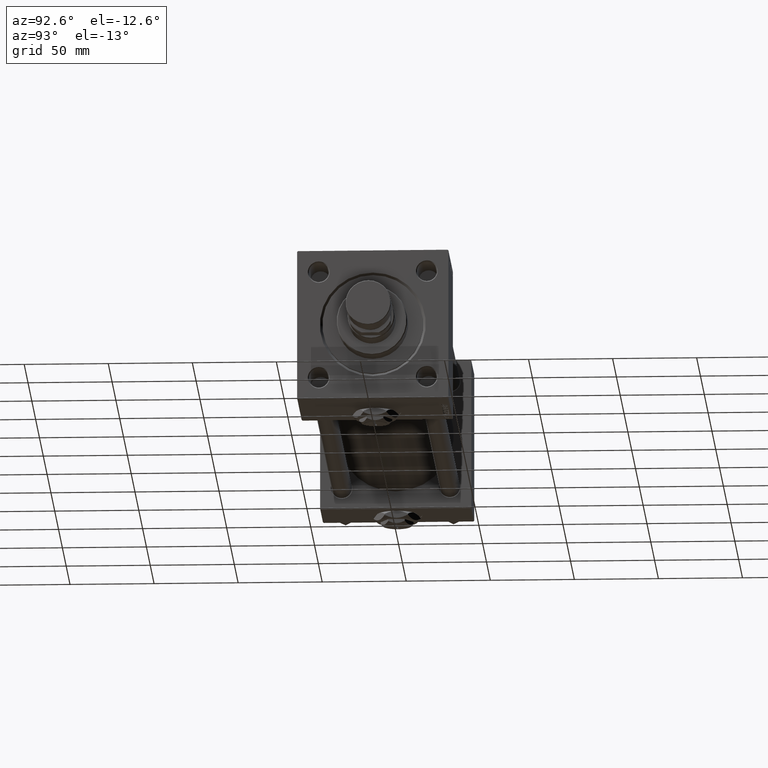
[diagram: clean part render]
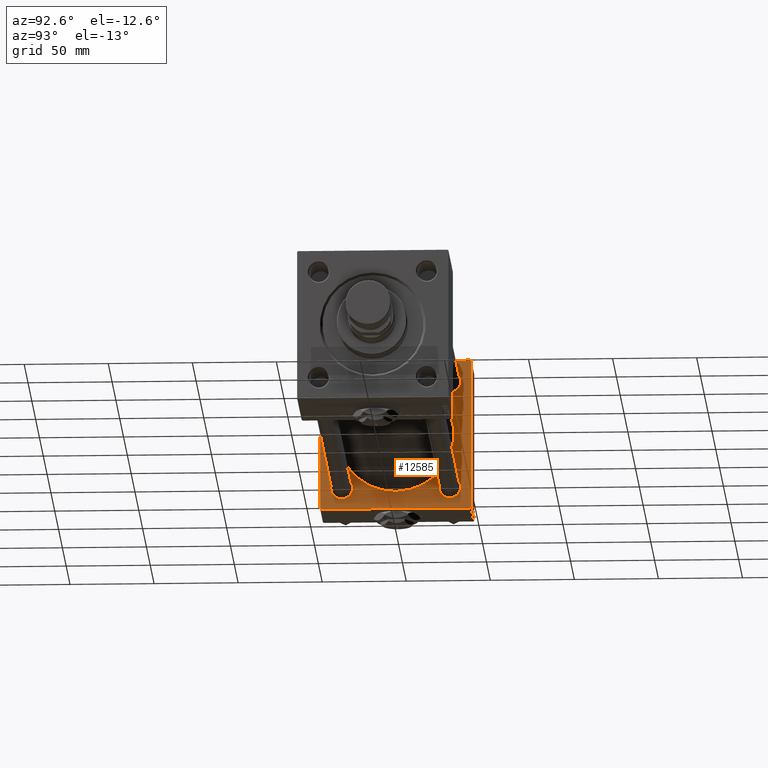
[diagram: same view with one face highlighted and labeled with its STEP entity id]
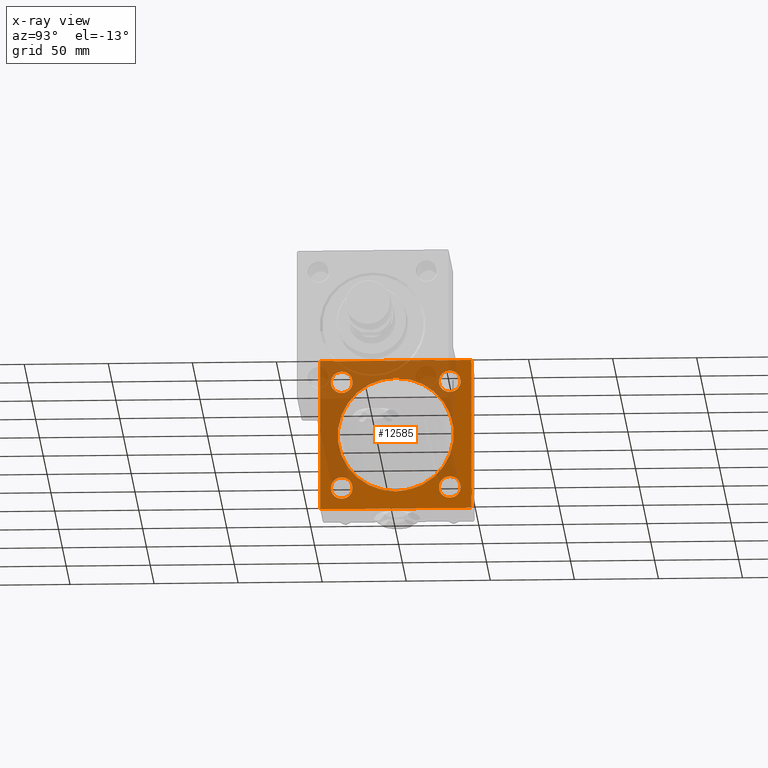
[diagram: x-ray of the same camera — body ghosted, the highlighted face saturated]
A machine part, auxiliary view. The second image highlights one B-rep face of the part: STEP entity #12585.
The next image is the same camera in x-ray: the body ghosted, the highlighted face saturated — about 49% of this face is hidden behind the body in this view.
In plain terms, the highlighted planar face has unit normal (-1, 0, 0).
Its self-contained STEP definition (entity closure, byte-faithful):
#335 = VERTEX_POINT ( 'NONE', #27713 ) ;
#470 = VERTEX_POINT ( 'NONE', #9527 ) ;
#721 = AXIS2_PLACEMENT_3D ( 'NONE', #30477, #9667, #46745 ) ;
#822 = EDGE_CURVE ( 'NONE', #7280, #34530, #19598, .T. ) ;
#852 = DIRECTION ( 'NONE',  ( 0.000000000000000000, 0.000000000000000000, -1.000000000000000000 ) ) ;
#931 = CARTESIAN_POINT ( 'NONE',  ( 37.00000000000000000, -45.00000000000000711, 44.49999999999997158 ) ) ;
#933 = DIRECTION ( 'NONE',  ( 0.000000000000000000, 7.709882115452476934E-17, -1.000000000000000000 ) ) ;
#1037 = VERTEX_POINT ( 'NONE', #3048 ) ;
#1238 = ORIENTED_EDGE ( 'NONE', *, *, #822, .T. ) ;
#1263 = CARTESIAN_POINT ( 'NONE',  ( 37.00000000000000000, -32.14999999999997726, -38.64999999999999147 ) ) ;
#1805 = AXIS2_PLACEMENT_3D ( 'NONE', #42183, #20843, #37131 ) ;
#2918 = FACE_BOUND ( 'NONE', #46558, .T. ) ;
#3048 = CARTESIAN_POINT ( 'NONE',  ( 37.00000000000000000, -32.14999999999997726, 25.65000000000003411 ) ) ;
#3194 = DIRECTION ( 'NONE',  ( -0.000000000000000000, 0.000000000000000000, 1.000000000000000000 ) ) ;
#3200 = VERTEX_POINT ( 'NONE', #1263 ) ;
#3572 = ORIENTED_EDGE ( 'NONE', *, *, #20319, .F. ) ;
#3604 = ORIENTED_EDGE ( 'NONE', *, *, #15194, .F. ) ;
#3796 = VECTOR ( 'NONE', #852, 1000.000000000000000 ) ;
#3840 = ORIENTED_EDGE ( 'NONE', *, *, #50311, .T. ) ;
#3986 = AXIS2_PLACEMENT_3D ( 'NONE', #34067, #30337, #49541 ) ;
#4209 = ORIENTED_EDGE ( 'NONE', *, *, #51849, .F. ) ;
#4685 = DIRECTION ( 'NONE',  ( -1.000000000000000000, 0.000000000000000000, -0.000000000000000000 ) ) ;
#4688 = EDGE_CURVE ( 'NONE', #10588, #335, #39326, .T. ) ;
#4828 = CARTESIAN_POINT ( 'NONE',  ( 37.00000000000000000, -44.49999999999998579, -45.00000000000000000 ) ) ;
#5151 = CARTESIAN_POINT ( 'NONE',  ( 37.00000000000000000, 44.99999999999998579, -44.99999999999998579 ) ) ;
#5708 = VECTOR ( 'NONE', #48580, 1000.000000000000114 ) ;
#5941 = CIRCLE ( 'NONE', #26381, 6.499999999999977796 ) ;
#5984 = EDGE_LOOP ( 'NONE', ( #3840, #30848 ) ) ;
#6044 = DIRECTION ( 'NONE',  ( -1.000000000000000000, 0.000000000000000000, -0.000000000000000000 ) ) ;
#6874 = ORIENTED_EDGE ( 'NONE', *, *, #12046, .T. ) ;
#7280 = VERTEX_POINT ( 'NONE', #15179 ) ;
#7632 = DIRECTION ( 'NONE',  ( -1.000000000000000000, 0.000000000000000000, -0.000000000000000000 ) ) ;
#8435 = CARTESIAN_POINT ( 'NONE',  ( 37.00000000000000000, 32.14999999999999147, 32.15000000000000568 ) ) ;
#8679 = DIRECTION ( 'NONE',  ( 0.000000000000000000, 0.000000000000000000, 1.000000000000000000 ) ) ;
#8828 = AXIS2_PLACEMENT_3D ( 'NONE', #42600, #6044, #22309 ) ;
#9244 = CIRCLE ( 'NONE', #721, 34.50000000000000000 ) ;
#9417 = LINE ( 'NONE', #5151, #48105 ) ;
#9527 = CARTESIAN_POINT ( 'NONE',  ( 37.00000000000000000, 44.99999999999998579, -44.49999999999995737 ) ) ;
#9667 = DIRECTION ( 'NONE',  ( 1.000000000000000000, -0.000000000000000000, 0.000000000000000000 ) ) ;
#9689 = CIRCLE ( 'NONE', #40328, 6.499999999999977796 ) ;
#9971 = ORIENTED_EDGE ( 'NONE', *, *, #47280, .T. ) ;
#10588 = VERTEX_POINT ( 'NONE', #26430 ) ;
#10613 = VERTEX_POINT ( 'NONE', #52297 ) ;
#11188 = PLANE ( 'NONE',  #27597 ) ;
#11871 = VERTEX_POINT ( 'NONE', #42353 ) ;
#11908 = CARTESIAN_POINT ( 'NONE',  ( 37.00000000000000000, -32.14999999999997726, -32.15000000000001279 ) ) ;
#12046 = EDGE_CURVE ( 'NONE', #335, #20813, #16160, .T. ) ;
#12585 = ADVANCED_FACE ( 'NONE', ( #27723, #39987, #39727, #19705, #2918, #39456 ), #11188, .F. ) ;
#12782 = LINE ( 'NONE', #36806, #43117 ) ;
#13064 = VECTOR ( 'NONE', #933, 1000.000000000000000 ) ;
#15179 = CARTESIAN_POINT ( 'NONE',  ( 37.00000000000000000, 32.14999999999999147, -38.64999999999998437 ) ) ;
#15194 = EDGE_CURVE ( 'NONE', #48610, #470, #23623, .T. ) ;
#15482 = CARTESIAN_POINT ( 'NONE',  ( 37.00000000000000000, 32.14999999999999147, -25.65000000000002700 ) ) ;
#16160 = LINE ( 'NONE', #931, #21686 ) ;
#16304 = DIRECTION ( 'NONE',  ( 0.000000000000000000, 0.7071067811865474617, -0.7071067811865474617 ) ) ;
#17805 = DIRECTION ( 'NONE',  ( -1.000000000000000000, 0.000000000000000000, -0.000000000000000000 ) ) ;
#18198 = CIRCLE ( 'NONE', #50573, 6.499999999999977796 ) ;
#18825 = VERTEX_POINT ( 'NONE', #28144 ) ;
#19180 = CARTESIAN_POINT ( 'NONE',  ( 37.00000000000000000, 0.000000000000000000, 0.000000000000000000 ) ) ;
#19524 = DIRECTION ( 'NONE',  ( 0.000000000000000000, 0.000000000000000000, 1.000000000000000000 ) ) ;
#19598 = CIRCLE ( 'NONE', #48600, 6.499999999999977796 ) ;
#19705 = FACE_BOUND ( 'NONE', #5984, .T. ) ;
#20076 = ORIENTED_EDGE ( 'NONE', *, *, #28786, .T. ) ;
#20243 = DIRECTION ( 'NONE',  ( -1.000000000000000000, 0.000000000000000000, -0.000000000000000000 ) ) ;
#20319 = EDGE_CURVE ( 'NONE', #10613, #44473, #39792, .T. ) ;
#20320 = DIRECTION ( 'NONE',  ( -1.000000000000000000, 0.000000000000000000, -0.000000000000000000 ) ) ;
#20572 = CARTESIAN_POINT ( 'NONE',  ( 37.00000000000000000, -32.14999999999997726, -32.15000000000001279 ) ) ;
#20727 = EDGE_CURVE ( 'NONE', #48610, #10588, #27777, .T. ) ;
#20813 = VERTEX_POINT ( 'NONE', #25060 ) ;
#20843 = DIRECTION ( 'NONE',  ( -1.000000000000000000, 0.000000000000000000, -0.000000000000000000 ) ) ;
#20947 = DIRECTION ( 'NONE',  ( -0.000000000000000000, -0.7071067811865425767, -0.7071067811865524577 ) ) ;
#21219 = EDGE_CURVE ( 'NONE', #30335, #3200, #33842, .T. ) ;
#21419 = VECTOR ( 'NONE', #43869, 1000.000000000000000 ) ;
#21421 = ORIENTED_EDGE ( 'NONE', *, *, #38765, .T. ) ;
#21514 = ORIENTED_EDGE ( 'NONE', *, *, #20727, .T. ) ;
#21587 = EDGE_CURVE ( 'NONE', #34865, #11871, #36852, .T. ) ;
#21686 = VECTOR ( 'NONE', #20947, 1000.000000000000114 ) ;
#22309 = DIRECTION ( 'NONE',  ( 0.000000000000000000, 0.000000000000000000, 1.000000000000000000 ) ) ;
#22748 = CARTESIAN_POINT ( 'NONE',  ( 37.00000000000000000, -32.14999999999997726, 38.64999999999999147 ) ) ;
#22890 = DIRECTION ( 'NONE',  ( -1.000000000000000000, 0.000000000000000000, -0.000000000000000000 ) ) ;
#22938 = EDGE_LOOP ( 'NONE', ( #9971, #49299 ) ) ;
#22996 = ORIENTED_EDGE ( 'NONE', *, *, #4688, .T. ) ;
#23521 = EDGE_CURVE ( 'NONE', #34530, #7280, #45369, .T. ) ;
#23623 = LINE ( 'NONE', #33395, #3796 ) ;
#24777 = CARTESIAN_POINT ( 'NONE',  ( 37.00000000000000000, 44.99999999999998579, 44.50000000000001421 ) ) ;
#25060 = CARTESIAN_POINT ( 'NONE',  ( 37.00000000000000000, -45.00000000000000711, 44.49999999999997158 ) ) ;
#26007 = DIRECTION ( 'NONE',  ( 0.000000000000000000, 0.000000000000000000, 1.000000000000000000 ) ) ;
#26381 = AXIS2_PLACEMENT_3D ( 'NONE', #20572, #20320, #19524 ) ;
#26430 = CARTESIAN_POINT ( 'NONE',  ( 37.00000000000000000, 44.49999999999998579, 45.00000000000001421 ) ) ;
#26693 = VERTEX_POINT ( 'NONE', #31007 ) ;
#27105 = ORIENTED_EDGE ( 'NONE', *, *, #42682, .T. ) ;
#27597 = AXIS2_PLACEMENT_3D ( 'NONE', #19180, #20243, #3194 ) ;
#27713 = CARTESIAN_POINT ( 'NONE',  ( 37.00000000000000000, -44.49999999999995737, 45.00000000000000000 ) ) ;
#27723 = FACE_BOUND ( 'NONE', #22938, .T. ) ;
#27777 = LINE ( 'NONE', #39249, #5708 ) ;
#27927 = DIRECTION ( 'NONE',  ( 0.000000000000000000, 0.000000000000000000, 1.000000000000000000 ) ) ;
#28144 = CARTESIAN_POINT ( 'NONE',  ( 37.00000000000000000, 32.14999999999999147, 25.65000000000002700 ) ) ;
#28786 = EDGE_CURVE ( 'NONE', #20813, #34865, #37479, .T. ) ;
#30214 = EDGE_CURVE ( 'NONE', #35702, #18825, #52295, .T. ) ;
#30335 = VERTEX_POINT ( 'NONE', #51660 ) ;
#30337 = DIRECTION ( 'NONE',  ( 1.000000000000000000, -0.000000000000000000, 0.000000000000000000 ) ) ;
#30477 = CARTESIAN_POINT ( 'NONE',  ( 37.00000000000000711, -2.602085213965210642E-15, 0.000000000000000000 ) ) ;
#30543 = CARTESIAN_POINT ( 'NONE',  ( 37.00000000000000000, 32.14999999999999147, -32.15000000000000568 ) ) ;
#30800 = EDGE_LOOP ( 'NONE', ( #1238, #30902 ) ) ;
#30848 = ORIENTED_EDGE ( 'NONE', *, *, #30214, .T. ) ;
#30902 = ORIENTED_EDGE ( 'NONE', *, *, #23521, .T. ) ;
#31007 = CARTESIAN_POINT ( 'NONE',  ( 37.00000000000000000, 44.49999999999998579, -44.99999999999998579 ) ) ;
#32182 = ORIENTED_EDGE ( 'NONE', *, *, #45097, .F. ) ;
#33017 = CARTESIAN_POINT ( 'NONE',  ( 37.00000000000000000, -45.00000000000000000, -44.49999999999995737 ) ) ;
#33395 = CARTESIAN_POINT ( 'NONE',  ( 37.00000000000000000, 44.99999999999998579, 45.00000000000001421 ) ) ;
#33842 = CIRCLE ( 'NONE', #52622, 6.499999999999977796 ) ;
#34067 = CARTESIAN_POINT ( 'NONE',  ( 37.00000000000000711, -2.602085213965210642E-15, 0.000000000000000000 ) ) ;
#34530 = VERTEX_POINT ( 'NONE', #15482 ) ;
#34622 = CARTESIAN_POINT ( 'NONE',  ( 37.00000000000000000, -32.14999999999997726, 32.15000000000001279 ) ) ;
#34748 = CIRCLE ( 'NONE', #47538, 6.499999999999977796 ) ;
#34865 = VERTEX_POINT ( 'NONE', #33017 ) ;
#35702 = VERTEX_POINT ( 'NONE', #52391 ) ;
#35862 = CARTESIAN_POINT ( 'NONE',  ( 37.00000000000000000, 44.99999999999998579, 45.00000000000001421 ) ) ;
#36806 = CARTESIAN_POINT ( 'NONE',  ( 37.00000000000000000, 44.99999999999998579, -44.49999999999998579 ) ) ;
#36852 = LINE ( 'NONE', #4828, #46640 ) ;
#37131 = DIRECTION ( 'NONE',  ( 0.000000000000000000, 0.000000000000000000, 1.000000000000000000 ) ) ;
#37432 = ORIENTED_EDGE ( 'NONE', *, *, #50153, .T. ) ;
#37479 = LINE ( 'NONE', #48710, #13064 ) ;
#38063 = ORIENTED_EDGE ( 'NONE', *, *, #21587, .T. ) ;
#38765 = EDGE_CURVE ( 'NONE', #26693, #470, #12782, .T. ) ;
#39169 = DIRECTION ( 'NONE',  ( 0.000000000000000000, 0.000000000000000000, 1.000000000000000000 ) ) ;
#39249 = CARTESIAN_POINT ( 'NONE',  ( 37.00000000000000000, 44.49999999999998579, 45.00000000000001421 ) ) ;
#39326 = LINE ( 'NONE', #35862, #21419 ) ;
#39456 = FACE_OUTER_BOUND ( 'NONE', #45375, .T. ) ;
#39727 = FACE_BOUND ( 'NONE', #51385, .T. ) ;
#39792 = CIRCLE ( 'NONE', #3986, 34.50000000000000000 ) ;
#39987 = FACE_BOUND ( 'NONE', #30800, .T. ) ;
#40328 = AXIS2_PLACEMENT_3D ( 'NONE', #8435, #7632, #27927 ) ;
#41199 = VERTEX_POINT ( 'NONE', #22748 ) ;
#42139 = CARTESIAN_POINT ( 'NONE',  ( 37.00000000000000711, 1.622946243093158675E-15, -34.50000000000000000 ) ) ;
#42183 = CARTESIAN_POINT ( 'NONE',  ( 37.00000000000000000, 32.14999999999999147, -32.15000000000000568 ) ) ;
#42353 = CARTESIAN_POINT ( 'NONE',  ( 37.00000000000000000, -44.49999999999995737, -45.00000000000000000 ) ) ;
#42503 = DIRECTION ( 'NONE',  ( 0.000000000000000000, -1.000000000000000000, -1.541976423090495633E-16 ) ) ;
#42547 = DIRECTION ( 'NONE',  ( -1.000000000000000000, 0.000000000000000000, -0.000000000000000000 ) ) ;
#42600 = CARTESIAN_POINT ( 'NONE',  ( 37.00000000000000000, 32.14999999999999147, 32.15000000000000568 ) ) ;
#42682 = EDGE_CURVE ( 'NONE', #41199, #1037, #34748, .T. ) ;
#43117 = VECTOR ( 'NONE', #48558, 1000.000000000000114 ) ;
#43188 = CARTESIAN_POINT ( 'NONE',  ( 37.00000000000000000, -32.14999999999997726, 32.15000000000001279 ) ) ;
#43869 = DIRECTION ( 'NONE',  ( 0.000000000000000000, -1.000000000000000000, -1.541976423090495387E-16 ) ) ;
#44473 = VERTEX_POINT ( 'NONE', #42139 ) ;
#45097 = EDGE_CURVE ( 'NONE', #44473, #10613, #9244, .T. ) ;
#45369 = CIRCLE ( 'NONE', #1805, 6.499999999999977796 ) ;
#45375 = EDGE_LOOP ( 'NONE', ( #4209, #21421, #3604, #21514, #22996, #6874, #20076, #38063 ) ) ;
#46558 = EDGE_LOOP ( 'NONE', ( #3572, #32182 ) ) ;
#46640 = VECTOR ( 'NONE', #16304, 1000.000000000000114 ) ;
#46745 = DIRECTION ( 'NONE',  ( 0.000000000000000000, 0.000000000000000000, 1.000000000000000000 ) ) ;
#47280 = EDGE_CURVE ( 'NONE', #3200, #30335, #5941, .T. ) ;
#47538 = AXIS2_PLACEMENT_3D ( 'NONE', #43188, #22890, #39169 ) ;
#48105 = VECTOR ( 'NONE', #42503, 1000.000000000000000 ) ;
#48558 = DIRECTION ( 'NONE',  ( -0.000000000000000000, 0.7071067811865474617, 0.7071067811865474617 ) ) ;
#48580 = DIRECTION ( 'NONE',  ( 0.000000000000000000, -0.7071067811865474617, 0.7071067811865474617 ) ) ;
#48600 = AXIS2_PLACEMENT_3D ( 'NONE', #30543, #42547, #26007 ) ;
#48610 = VERTEX_POINT ( 'NONE', #24777 ) ;
#48710 = CARTESIAN_POINT ( 'NONE',  ( 37.00000000000000000, -45.00000000000000711, 45.00000000000000000 ) ) ;
#49299 = ORIENTED_EDGE ( 'NONE', *, *, #21219, .T. ) ;
#49541 = DIRECTION ( 'NONE',  ( 0.000000000000000000, 0.000000000000000000, 1.000000000000000000 ) ) ;
#50153 = EDGE_CURVE ( 'NONE', #1037, #41199, #18198, .T. ) ;
#50311 = EDGE_CURVE ( 'NONE', #18825, #35702, #9689, .T. ) ;
#50573 = AXIS2_PLACEMENT_3D ( 'NONE', #34622, #17805, #50896 ) ;
#50896 = DIRECTION ( 'NONE',  ( 0.000000000000000000, 0.000000000000000000, 1.000000000000000000 ) ) ;
#51385 = EDGE_LOOP ( 'NONE', ( #37432, #27105 ) ) ;
#51660 = CARTESIAN_POINT ( 'NONE',  ( 37.00000000000000000, -32.14999999999997726, -25.65000000000003411 ) ) ;
#51849 = EDGE_CURVE ( 'NONE', #26693, #11871, #9417, .T. ) ;
#52295 = CIRCLE ( 'NONE', #8828, 6.499999999999977796 ) ;
#52297 = CARTESIAN_POINT ( 'NONE',  ( 37.00000000000000711, -2.602085213965210642E-15, 34.50000000000000000 ) ) ;
#52391 = CARTESIAN_POINT ( 'NONE',  ( 37.00000000000000000, 32.14999999999999147, 38.64999999999998437 ) ) ;
#52622 = AXIS2_PLACEMENT_3D ( 'NONE', #11908, #4685, #8679 ) ;